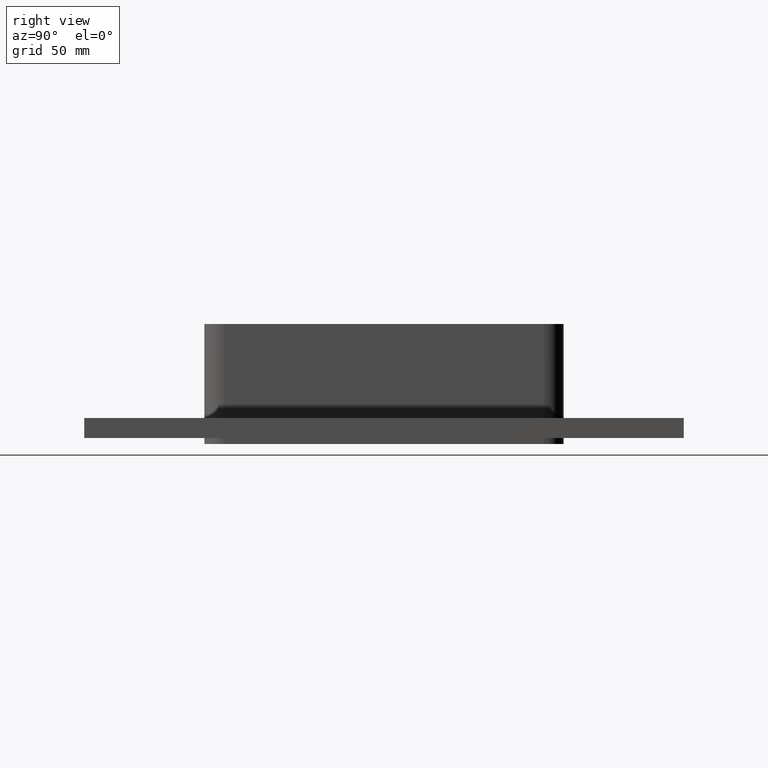
[diagram: clean part render]
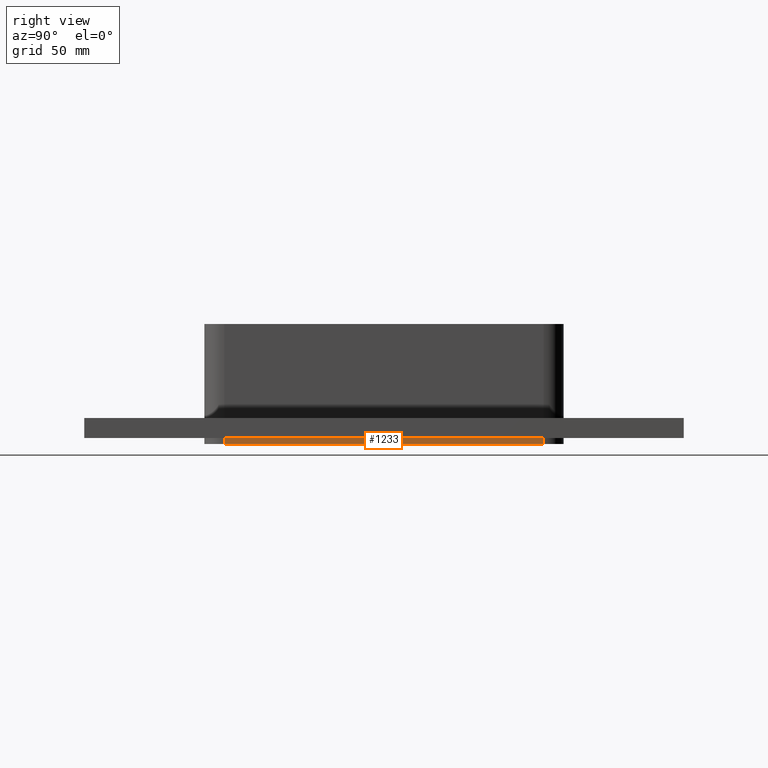
[diagram: same view with one face highlighted and labeled with its STEP entity id]
A machine part, right view. The second image highlights one B-rep face of the part: STEP entity #1233.
In plain terms, the highlighted planar face has unit normal (1, 0, 0).
Its self-contained STEP definition (entity closure, byte-faithful):
#627=CARTESIAN_POINT('',(40.249999999999986,79.750000000000014,-27.0));
#628=VERTEX_POINT('',#627);
#678=CARTESIAN_POINT('',(40.249999999999986,-79.75,-27.0));
#679=VERTEX_POINT('',#678);
#687=CARTESIAN_POINT('',(40.249999999999915,79.750000000000014,-26.999999999999996));
#688=DIRECTION('',(0.0,-1.0,0.0));
#689=VECTOR('',#688,159.5);
#690=LINE('',#687,#689);
#691=EDGE_CURVE('',#628,#679,#690,.T.);
#710=CARTESIAN_POINT('',(40.249999999999915,-79.749999999999829,-30.0));
#711=VERTEX_POINT('',#710);
#719=CARTESIAN_POINT('',(40.249999999999915,-79.749999999999829,-30.0));
#720=DIRECTION('',(0.0,0.0,1.0));
#721=VECTOR('',#720,3.0);
#722=LINE('',#719,#721);
#723=EDGE_CURVE('',#711,#679,#722,.T.);
#949=CARTESIAN_POINT('',(40.249999999999915,79.750000000000114,-30.0));
#950=VERTEX_POINT('',#949);
#958=CARTESIAN_POINT('',(40.249999999999915,79.750000000000114,-30.0));
#959=DIRECTION('',(0.0,-1.0,0.0));
#960=VECTOR('',#959,159.49999999999994);
#961=LINE('',#958,#960);
#962=EDGE_CURVE('',#950,#711,#961,.T.);
#1098=CARTESIAN_POINT('',(40.249999999999915,79.750000000000128,-27.0));
#1099=DIRECTION('',(0.0,0.0,-1.0));
#1100=VECTOR('',#1099,3.0);
#1101=LINE('',#1098,#1100);
#1102=EDGE_CURVE('',#628,#950,#1101,.T.);
#1222=CARTESIAN_POINT('',(40.249999999999915,-89.749999999999829,0.0));
#1223=DIRECTION('',(1.0,0.0,0.0));
#1224=DIRECTION('',(0.0,1.0,0.0));
#1225=AXIS2_PLACEMENT_3D('',#1222,#1223,#1224);
#1226=PLANE('',#1225);
#1227=ORIENTED_EDGE('',*,*,#691,.T.);
#1228=ORIENTED_EDGE('',*,*,#723,.F.);
#1229=ORIENTED_EDGE('',*,*,#962,.F.);
#1230=ORIENTED_EDGE('',*,*,#1102,.F.);
#1231=EDGE_LOOP('',(#1227,#1228,#1229,#1230));
#1232=FACE_OUTER_BOUND('',#1231,.T.);
#1233=ADVANCED_FACE('',(#1232),#1226,.T.);